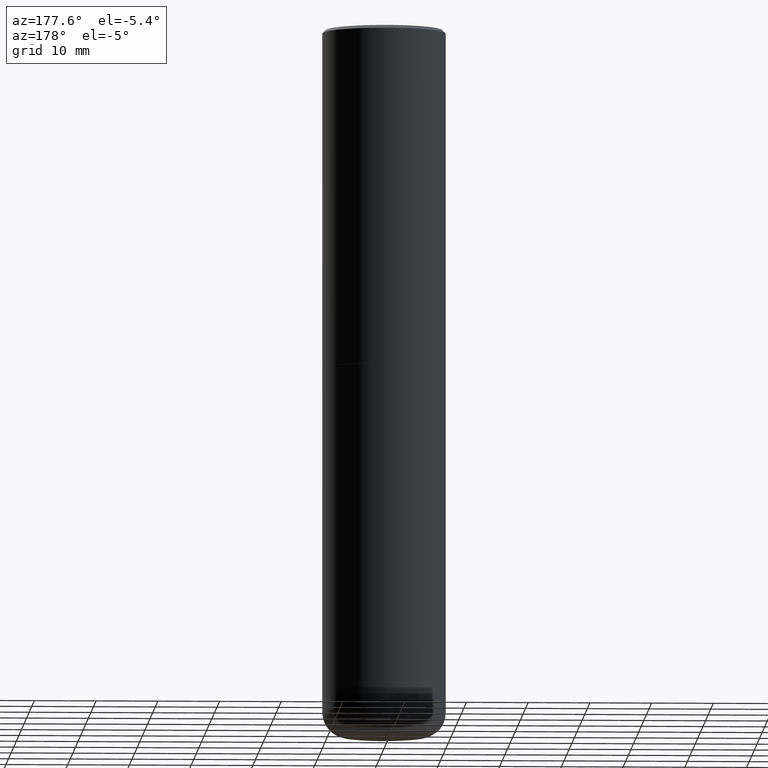
[diagram: clean part render]
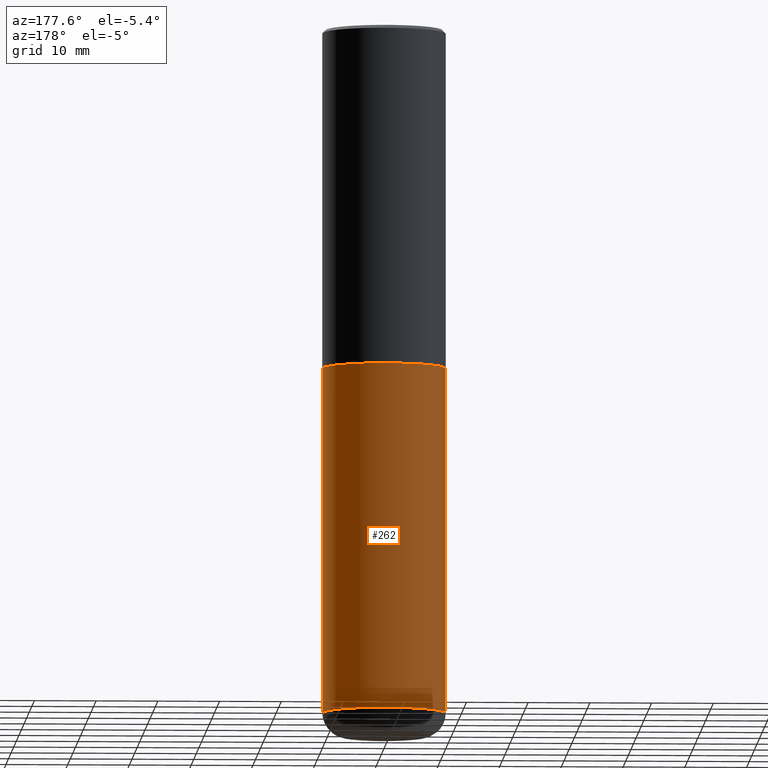
[diagram: same view with one face highlighted and labeled with its STEP entity id]
A machine part, auxiliary view. The second image highlights one B-rep face of the part: STEP entity #262.
In plain terms, the highlighted cylindrical surface (partial cylindrical patch) has radius 10 mm, axis along (-0, 0, 1).
Its self-contained STEP definition (entity closure, byte-faithful):
#10 = CARTESIAN_POINT ( 'NONE',  ( -0.3937000000000001054, 2.797406750687515181E-15, -1.936584745033357016E-29 ) ) ;
#24 = CARTESIAN_POINT ( 'NONE',  ( 1.068694322990966450E-28, -1.525812259887842897E-14, -4.370099999999998985 ) ) ;
#33 = CARTESIAN_POINT ( 'NONE',  ( 5.295418152913293224E-29, -7.560453691130945845E-15, -2.165399999999999547 ) ) ;
#34 = VECTOR ( 'NONE', #47, 39.37007874015748143 ) ;
#42 = DIRECTION ( 'NONE',  ( 1.000000000000000000, -6.982962677686261977E-15, 0.000000000000000000 ) ) ;
#43 = VERTEX_POINT ( 'NONE', #239 ) ;
#45 = FACE_OUTER_BOUND ( 'NONE', #271, .T. ) ;
#47 = DIRECTION ( 'NONE',  ( -2.445468806185136877E-29, 3.491481338843145188E-15, 1.000000000000000000 ) ) ;
#63 = ORIENTED_EDGE ( 'NONE', *, *, #99, .F. ) ;
#71 = EDGE_CURVE ( 'NONE', #195, #43, #94, .T. ) ;
#80 = AXIS2_PLACEMENT_3D ( 'NONE', #24, #151, #42 ) ;
#94 = CIRCLE ( 'NONE', #403, 0.3937000000000000499 ) ;
#99 = EDGE_CURVE ( 'NONE', #338, #195, #248, .T. ) ;
#106 = CARTESIAN_POINT ( 'NONE',  ( 0.000000000000000000, 0.000000000000000000, 0.000000000000000000 ) ) ;
#148 = DIRECTION ( 'NONE',  ( -2.445468806185136597E-29, 3.491481338843145583E-15, 1.000000000000000000 ) ) ;
#151 = DIRECTION ( 'NONE',  ( -2.445468806185136597E-29, 3.491481338843145583E-15, 1.000000000000000000 ) ) ;
#166 = EDGE_CURVE ( 'NONE', #211, #43, #369, .T. ) ;
#195 = VERTEX_POINT ( 'NONE', #321 ) ;
#211 = VERTEX_POINT ( 'NONE', #220 ) ;
#220 = CARTESIAN_POINT ( 'NONE',  ( -0.3937000000000001054, -1.246071584819091497E-14, -4.370099999999998985 ) ) ;
#238 = CIRCLE ( 'NONE', #80, 0.3937000000000001054 ) ;
#239 = CARTESIAN_POINT ( 'NONE',  ( -0.3937000000000000499, -8.611881394317173410E-15, -2.165399999999999547 ) ) ;
#248 = LINE ( 'NONE', #322, #340 ) ;
#249 = ORIENTED_EDGE ( 'NONE', *, *, #166, .T. ) ;
#261 = CARTESIAN_POINT ( 'NONE',  ( 0.3937000000000001054, -1.800731500508351219E-14, -4.370099999999998985 ) ) ;
#262 = ADVANCED_FACE ( 'NONE', ( #45 ), #292, .T. ) ;
#271 = EDGE_LOOP ( 'NONE', ( #400, #249, #308, #63 ) ) ;
#285 = EDGE_CURVE ( 'NONE', #338, #211, #238, .T. ) ;
#290 = DIRECTION ( 'NONE',  ( 1.000000000000000000, -6.982962677686265133E-15, 0.000000000000000000 ) ) ;
#292 = CYLINDRICAL_SURFACE ( 'NONE', #316, 0.3937000000000001054 ) ;
#308 = ORIENTED_EDGE ( 'NONE', *, *, #71, .F. ) ;
#312 = DIRECTION ( 'NONE',  ( -2.445468806185136877E-29, 3.491481338843145188E-15, 1.000000000000000000 ) ) ;
#316 = AXIS2_PLACEMENT_3D ( 'NONE', #106, #346, #413 ) ;
#321 = CARTESIAN_POINT ( 'NONE',  ( 0.3937000000000000499, -1.030964609733602906E-14, -2.165399999999999547 ) ) ;
#322 = CARTESIAN_POINT ( 'NONE',  ( 0.3937000000000001054, -2.749192406205084005E-15, 1.919750796630860452E-29 ) ) ;
#338 = VERTEX_POINT ( 'NONE', #261 ) ;
#340 = VECTOR ( 'NONE', #312, 39.37007874015748143 ) ;
#346 = DIRECTION ( 'NONE',  ( -2.445468806185136597E-29, 3.491481338843145583E-15, 1.000000000000000000 ) ) ;
#369 = LINE ( 'NONE', #10, #34 ) ;
#400 = ORIENTED_EDGE ( 'NONE', *, *, #285, .T. ) ;
#403 = AXIS2_PLACEMENT_3D ( 'NONE', #33, #148, #290 ) ;
#413 = DIRECTION ( 'NONE',  ( 1.000000000000000000, -6.982962677686266711E-15, 4.876176775795935793E-29 ) ) ;